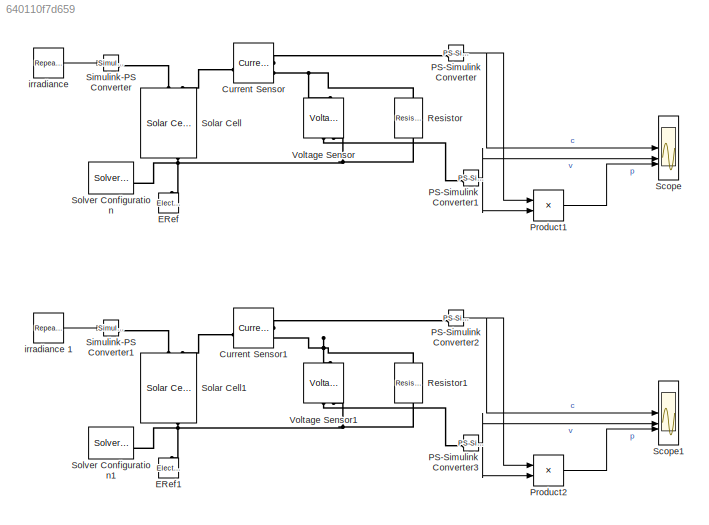
MODEL slx_640110f7d659
KIND model
CONFIG AbsTol = auto
CONFIG EnableMultiTasking = off
CONFIG FixedStep = 0.0001
CONFIG MaxStep = auto
CONFIG MinStep = auto
CONFIG RelTol = 1e-3
CONFIG SampleTimeConstraint = Unconstrained
CONFIG SolverName = FixedStepAuto
CONFIG StartTime = 0.0
CONFIG StopTime = 20
BLOCK [Reference] Current Sensor  REF=fl_lib/Electrical/Electrical Sensors/Current Sensor
  SourceBlock = fl_lib/Electrical/Electrical Sensors/Current Sensor
  SourceType = Current Sensor
BLOCK [Reference] Current Sensor1  REF=fl_lib/Electrical/Electrical Sensors/Current Sensor
  SourceBlock = fl_lib/Electrical/Electrical Sensors/Current Sensor
  SourceType = Current Sensor
BLOCK [Reference] ERef  REF=fl_lib/Electrical/Electrical Elements/Electrical Reference
  NameLocation = right
  SourceBlock = fl_lib/Electrical/Electrical Elements/Electrical Reference
  SourceType = Electrical Reference
BLOCK [Reference] ERef1  REF=fl_lib/Electrical/Electrical Elements/Electrical Reference
  NameLocation = right
  SourceBlock = fl_lib/Electrical/Electrical Elements/Electrical Reference
  SourceType = Electrical Reference
BLOCK [Reference] PS-Simulink Converter  REF=nesl_utility/PS-Simulink
Converter
  SourceBlock = nesl_utility/PS-Simulink\nConverter
  SourceType = PS-Simulink\nConverter
BLOCK [Reference] PS-Simulink Converter1  REF=nesl_utility/PS-Simulink
Converter
  SourceBlock = nesl_utility/PS-Simulink\nConverter
  SourceType = PS-Simulink\nConverter
BLOCK [Reference] PS-Simulink Converter2  REF=nesl_utility/PS-Simulink
Converter
  SourceBlock = nesl_utility/PS-Simulink\nConverter
  SourceType = PS-Simulink\nConverter
BLOCK [Reference] PS-Simulink Converter3  REF=nesl_utility/PS-Simulink
Converter
  SourceBlock = nesl_utility/PS-Simulink\nConverter
  SourceType = PS-Simulink\nConverter
BLOCK [Product] Product1
BLOCK [Product] Product2
BLOCK [Reference] Resistor  REF=fl_lib/Electrical/Electrical Elements/Resistor
  NameLocation = left
  SourceBlock = fl_lib/Electrical/Electrical Elements/Resistor
  SourceType = Resistor
BLOCK [Reference] Resistor1  REF=fl_lib/Electrical/Electrical Elements/Resistor
  NameLocation = left
  SourceBlock = fl_lib/Electrical/Electrical Elements/Resistor
  SourceType = Resistor
BLOCK [Scope] Scope
  Floating = off
  NumInputPorts = 3
  ScopeSpecificationString = Simulink.scopes.TimeScopeBlockCfg('CurrentConfiguration', extmgr.ConfigurationSet(extmgr.Configuration('Core','General UI',true),extmgr.Configuration('Core','Source UI',true),extmgr.Configuration('Sources','WiredSimulink',true),extmgr.Configuration('Visuals','Time Domain',true,'SerializedDisplays',{struct('MinYLimReal','-191.62047','MaxYLimReal','1724.58425','YLabelReal','','MinYLimMag',' 0.00000'...<+1427ch>
BLOCK [Scope] Scope1
  Floating = off
  NumInputPorts = 3
  ScopeSpecificationString = Simulink.scopes.TimeScopeBlockCfg('CurrentConfiguration', extmgr.ConfigurationSet(extmgr.Configuration('Core','General UI',true),extmgr.Configuration('Core','Source UI',true),extmgr.Configuration('Sources','WiredSimulink',true,'DataLoggingVariableName','ScopeData1'),extmgr.Configuration('Visuals','Time Domain',true,'SerializedDisplays',{struct('MinYLimReal','-5.01319','MaxYLimReal','45.11875','YLa...<+1425ch>
BLOCK [Reference] Simulink-PS Converter  REF=nesl_utility/Simulink-PS
Converter
  SourceBlock = nesl_utility/Simulink-PS\nConverter
  SourceType = Simulink-PS\nConverter
BLOCK [Reference] Simulink-PS Converter1  REF=nesl_utility/Simulink-PS
Converter
  SourceBlock = nesl_utility/Simulink-PS\nConverter
  SourceType = Simulink-PS\nConverter
BLOCK [Reference] Solar Cell  REF=ee_lib/Sources/Solar Cell
  AttributesFormatString = Amerisolar:AS_6M30_HC_320W
  NameLocation = left
  SourceBlock = ee_lib/Sources/Solar Cell
  SourceType = Solar Cell
  Tag = {'toolbox/physmod/elec/library/m/ee_lib_parts';'Sources/Solar_Cell/Amerisolar/AS_6M30_HC_320W.xml'}
BLOCK [Reference] Solar Cell1  REF=ee_lib/Sources/Solar Cell
  AttributesFormatString = Amerisolar:AS_6M30_HC_320W
  NameLocation = left
  SourceBlock = ee_lib/Sources/Solar Cell
  SourceType = Solar Cell
  Tag = {'toolbox/physmod/elec/library/m/ee_lib_parts';'Sources/Solar_Cell/Amerisolar/AS_6M30_HC_320W.xml'}
BLOCK [Reference] Solver Configuration  REF=nesl_utility/Solver
Configuration
  SourceBlock = nesl_utility/Solver\nConfiguration
  SourceType = Solver\nConfiguration
BLOCK [Reference] Solver Configuration1  REF=nesl_utility/Solver
Configuration
  SourceBlock = nesl_utility/Solver\nConfiguration
  SourceType = Solver\nConfiguration
BLOCK [Reference] Voltage Sensor  REF=fl_lib/Electrical/Electrical Sensors/Voltage Sensor
  NameLocation = right
  SourceBlock = fl_lib/Electrical/Electrical Sensors/Voltage Sensor
  SourceType = Voltage Sensor
BLOCK [Reference] Voltage Sensor1  REF=fl_lib/Electrical/Electrical Sensors/Voltage Sensor
  NameLocation = right
  SourceBlock = fl_lib/Electrical/Electrical Sensors/Voltage Sensor
  SourceType = Voltage Sensor
BLOCK [Reference] irradiance   REF=simulink/Sources/Repeating
Sequence
Interpolated
  NameLocation = top
  SourceBlock = simulink/Sources/Repeating\nSequence\nInterpolated
  SourceType = Repeating Sequence Interpolated
BLOCK [Reference] irradiance 1  REF=simulink/Sources/Repeating
Sequence
Interpolated
  NameLocation = top
  SourceBlock = simulink/Sources/Repeating\nSequence\nInterpolated
  SourceType = Repeating Sequence Interpolated
NET PS-Simulink Converter1:1 -> Product1:2, Scope:2
NET PS-Simulink Converter2:1 -> Product2:1, Scope1:1
NET PS-Simulink Converter3:1 -> Product2:2, Scope1:2
NET PS-Simulink Converter:1 -> Product1:1, Scope:1
LINE Product1:1 -> Scope:3
LINE Product2:1 -> Scope1:3
LINE irradiance 1:1 -> Simulink-PS Converter1:1
LINE irradiance :1 -> Simulink-PS Converter:1
PLINE Current Sensor1:LConn1 -- Solar Cell1:LConn2
PLINE Current Sensor1:RConn1 -- PS-Simulink Converter2:LConn1
PNET net1: Current Sensor1:RConn2 -- Resistor1:LConn1 -- Voltage Sensor1:LConn1
PLINE Current Sensor:LConn1 -- Solar Cell:LConn2
PLINE Current Sensor:RConn1 -- PS-Simulink Converter:LConn1
PNET net2: Current Sensor:RConn2 -- Resistor:LConn1 -- Voltage Sensor:LConn1
PNET net3: ERef1:LConn1 -- Resistor1:RConn1 -- Solar Cell1:RConn1 -- Solver Configuration1:RConn1 -- Voltage Sensor1:RConn2
PNET net4: ERef:LConn1 -- Resistor:RConn1 -- Solar Cell:RConn1 -- Solver Configuration:RConn1 -- Voltage Sensor:RConn2
PLINE PS-Simulink Converter1:LConn1 -- Voltage Sensor:RConn1
PLINE PS-Simulink Converter3:LConn1 -- Voltage Sensor1:RConn1
PLINE Simulink-PS Converter1:RConn1 -- Solar Cell1:LConn1
PLINE Simulink-PS Converter:RConn1 -- Solar Cell:LConn1
note: NET lines group one-source signal fan-out (src -> all destinations, sorted); 1:1 wires keep LINE; PNET lines group multi-terminal physical nets as a canonical sorted terminal list (undirected conserving connections); 2-terminal nets keep the pairwise PLINE form
